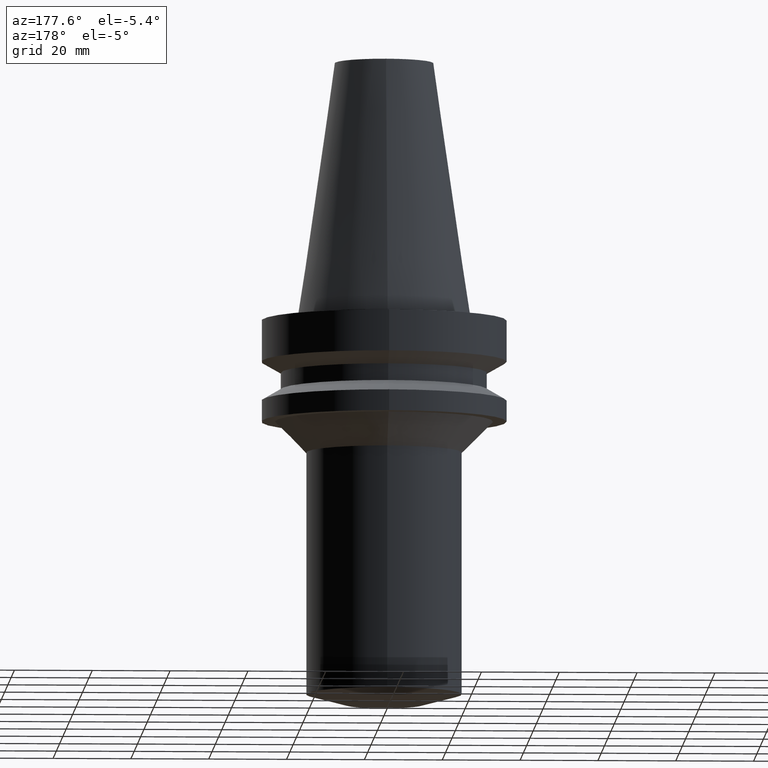
[diagram: clean part render]
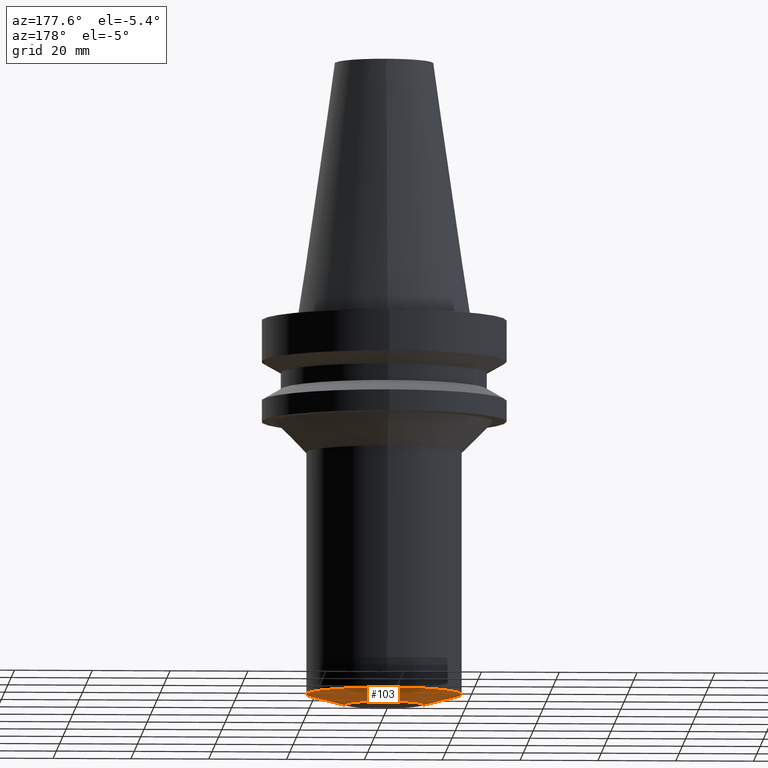
[diagram: same view with one face highlighted and labeled with its STEP entity id]
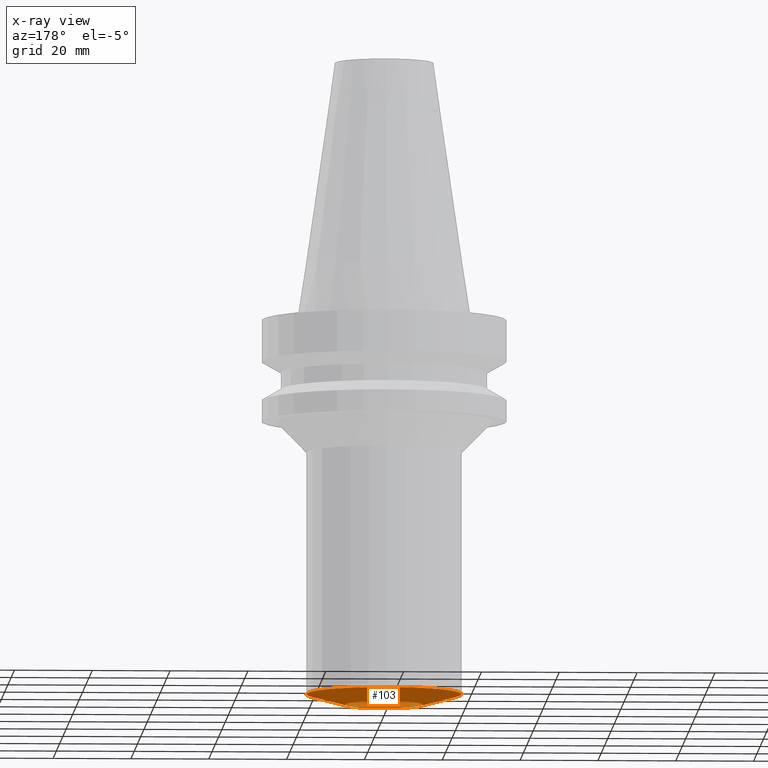
[diagram: x-ray of the same camera — body ghosted, the highlighted face saturated]
A machine part, auxiliary view. The second image highlights one B-rep face of the part: STEP entity #103.
The next image is the same camera in x-ray: the body ghosted, the highlighted face saturated — about 4% of this face is hidden behind the body in this view.
In plain terms, the highlighted conical surface has half-angle 75 deg.
Its self-contained STEP definition (entity closure, byte-faithful):
#103=ADVANCED_FACE('Unnamed[1]',(#218,#219),#220,.T.);
#105=EDGE_CURVE('Unnamed[1]',#222,#222,#223,.T.);
#119=EDGE_CURVE('Unnamed[1]',#243,#243,#244,.T.);
#218=FACE_BOUND('',#353,.T.);
#219=FACE_BOUND('',#354,.T.);
#220=CONICAL_SURFACE('',#355,15.0,1.3089969387368);
#222=VERTEX_POINT('',#358);
#223=CIRCLE('',#359,20.0);
#243=VERTEX_POINT('',#385);
#244=CIRCLE('',#386,10.0);
#353=EDGE_LOOP('',(#480));
#354=EDGE_LOOP('',(#481));
#355=AXIS2_PLACEMENT_3D('',#482,#483,#484);
#358=CARTESIAN_POINT('',(5.95916243514438E-015,20.0,-97.3205080729134));
#359=AXIS2_PLACEMENT_3D('',#485,#486,#487);
#385=CARTESIAN_POINT('',(6.12323399573677E-015,10.0,-100.0));
#386=AXIS2_PLACEMENT_3D('',#508,#509,#510);
#480=ORIENTED_EDGE('',*,*,#119,.F.);
#481=ORIENTED_EDGE('',*,*,#105,.T.);
#482=CARTESIAN_POINT('',(6.04119821544057E-015,-1.42072998183265E-014,-98.6602540364567));
#483=DIRECTION('',(-6.12323399573677E-017,5.53589630679993E-016,1.0));
#484=DIRECTION('',(2.90704357319019E-032,1.0,-5.53589630679993E-016));
#485=CARTESIAN_POINT('',(5.95916243514438E-015,-1.34656303451636E-014,-97.3205080729134));
#486=DIRECTION('',(6.12323399573676E-017,-5.53589630679993E-016,-1.0));
#487=DIRECTION('',(2.90704357319019E-032,1.0,-5.53589630679993E-016));
#508=CARTESIAN_POINT('',(6.12323399573677E-015,-1.49489692914894E-014,-100.0));
#509=DIRECTION('',(6.12323399573676E-017,-5.53589630679993E-016,-1.0));
#510=DIRECTION('',(2.90704357319019E-032,1.0,-5.53589630679993E-016));